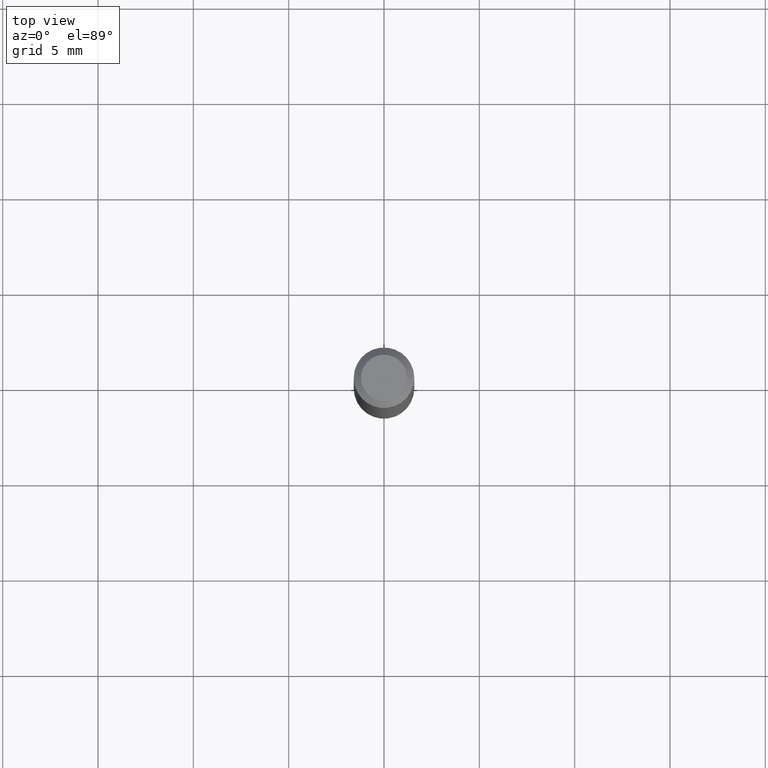
[diagram: clean part render]
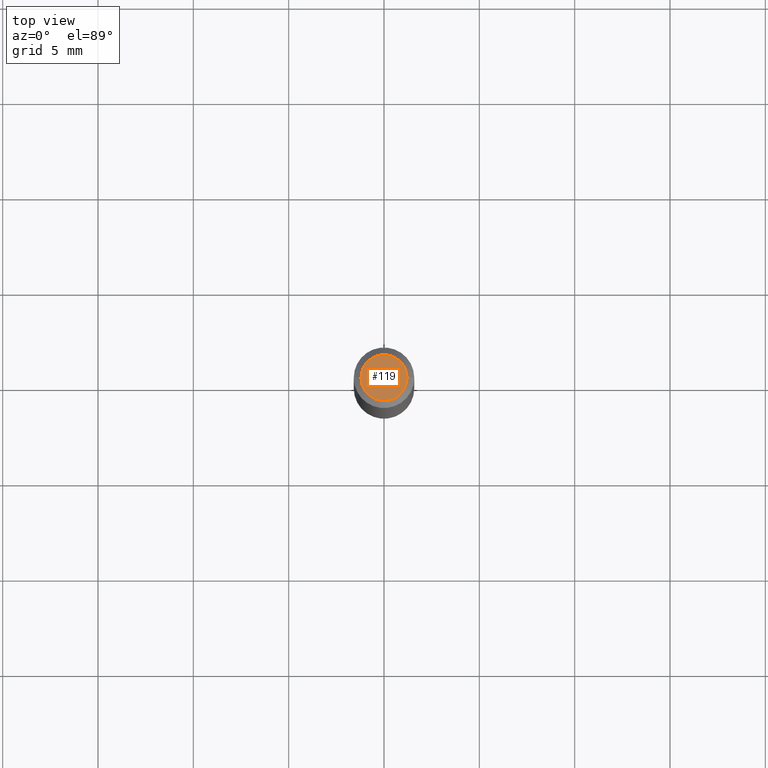
[diagram: same view with one face highlighted and labeled with its STEP entity id]
A machine part, top view. The second image highlights one B-rep face of the part: STEP entity #119.
In plain terms, the highlighted planar face has unit normal (0, -0, -1).
Its self-contained STEP definition (entity closure, byte-faithful):
#29 = DIRECTION ( 'NONE',  ( 1.000000000000000000, -6.982962677686266711E-15, 4.852736867747365086E-29 ) ) ;
#46 = FACE_OUTER_BOUND ( 'NONE', #336, .T. ) ;
#58 = EDGE_CURVE ( 'NONE', #184, #437, #191, .T. ) ;
#73 = DIRECTION ( 'NONE',  ( -2.445468806185136597E-29, 3.491481338843145583E-15, 1.000000000000000000 ) ) ;
#78 = PLANE ( 'NONE',  #356 ) ;
#93 = EDGE_CURVE ( 'NONE', #437, #184, #423, .T. ) ;
#119 = ADVANCED_FACE ( 'NONE', ( #46 ), #78, .F. ) ;
#184 = VERTEX_POINT ( 'NONE', #197 ) ;
#188 = ORIENTED_EDGE ( 'NONE', *, *, #93, .T. ) ;
#191 = CIRCLE ( 'NONE', #248, 0.04750000000000000749 ) ;
#197 = CARTESIAN_POINT ( 'NONE',  ( 0.04750000000000000749, -4.035134999187568762E-16, 2.731847993664288856E-16 ) ) ;
#227 = CARTESIAN_POINT ( 'NONE',  ( -6.680649051745406845E-45, 9.538196290434862081E-31, 2.731847993664263218E-16 ) ) ;
#248 = AXIS2_PLACEMENT_3D ( 'NONE', #301, #73, #29 ) ;
#266 = DIRECTION ( 'NONE',  ( -1.000000000000000000, 6.982962677686265922E-15, -4.876176775795935793E-29 ) ) ;
#301 = CARTESIAN_POINT ( 'NONE',  ( -6.680649051745406845E-45, 9.538196290434862081E-31, 2.731847993664263218E-16 ) ) ;
#336 = EDGE_LOOP ( 'NONE', ( #188, #490 ) ) ;
#346 = CARTESIAN_POINT ( 'NONE',  ( 3.316907271900976589E-16, 0.04750000000000000749, -2.925296391183627249E-17 ) ) ;
#356 = AXIS2_PLACEMENT_3D ( 'NONE', #346, #427, #266 ) ;
#378 = DIRECTION ( 'NONE',  ( -2.445468806185136597E-29, 3.491481338843145583E-15, 1.000000000000000000 ) ) ;
#406 = CARTESIAN_POINT ( 'NONE',  ( -0.04750000000000000749, 3.578768372314221353E-16, 2.731847993664239060E-16 ) ) ;
#423 = CIRCLE ( 'NONE', #500, 0.04750000000000000749 ) ;
#427 = DIRECTION ( 'NONE',  ( 2.438088387897960049E-29, -3.491481338843145188E-15, -1.000000000000000000 ) ) ;
#437 = VERTEX_POINT ( 'NONE', #406 ) ;
#490 = ORIENTED_EDGE ( 'NONE', *, *, #58, .T. ) ;
#500 = AXIS2_PLACEMENT_3D ( 'NONE', #227, #378, #512 ) ;
#512 = DIRECTION ( 'NONE',  ( 1.000000000000000000, -6.982962677686266711E-15, 4.852736867747365086E-29 ) ) ;